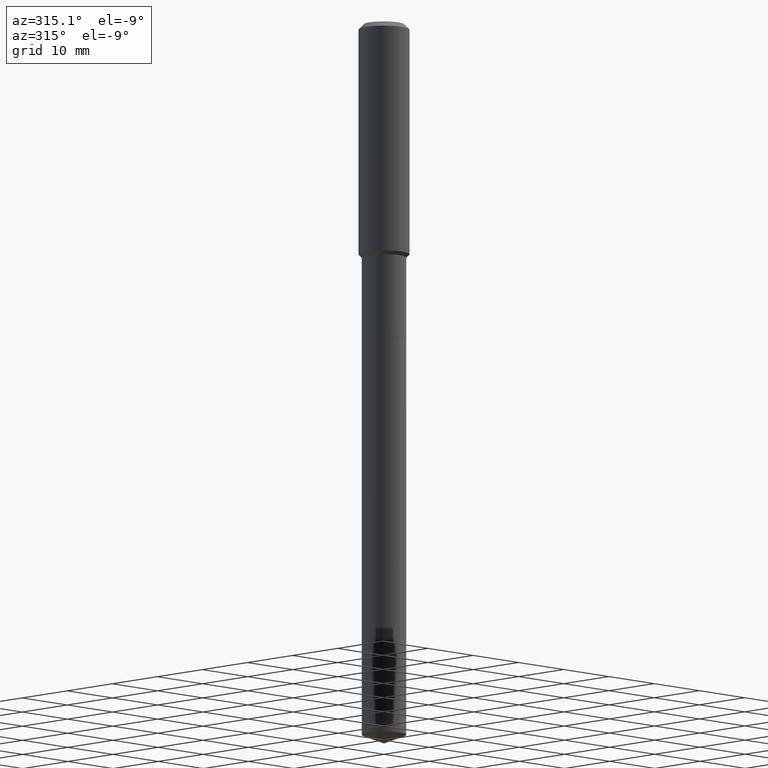
[diagram: clean part render]
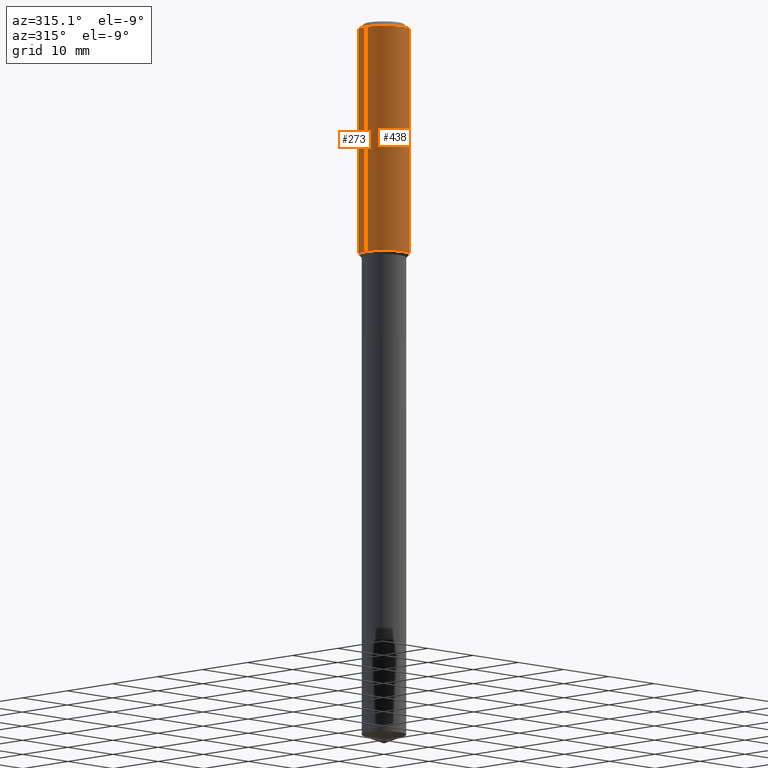
[diagram: same view with one multi-face feature highlighted, each face labeled with its STEP entity id]
A machine part, auxiliary view. The highlighted faces form ONE feature: a constant-radius fillet chain: 2 tangent blend faces with common blend radius 4.0005 mm. The faces share edges in the B-rep.
Their STEP definitions:
[1] entity #438 (Cylinder):
#7 = DIRECTION ( 'NONE',  ( -2.445468806185136877E-29, 3.491481338843145188E-15, 1.000000000000000000 ) ) ;
#20 = ORIENTED_EDGE ( 'NONE', *, *, #325, .T. ) ;
#31 = VERTEX_POINT ( 'NONE', #430 ) ;
#46 = CARTESIAN_POINT ( 'NONE',  ( 0.1575000000000000844, -1.099816621735587677E-15, 7.679978421878603638E-30 ) ) ;
#52 = LINE ( 'NONE', #237, #287 ) ;
#56 = ORIENTED_EDGE ( 'NONE', *, *, #465, .T. ) ;
#76 = CIRCLE ( 'NONE', #160, 0.1575000000000001676 ) ;
#78 = DIRECTION ( 'NONE',  ( -2.445468806185136597E-29, 3.491481338843145583E-15, 1.000000000000000000 ) ) ;
#89 = CARTESIAN_POINT ( 'NONE',  ( 0.000000000000000000, 0.000000000000000000, 0.000000000000000000 ) ) ;
#91 = CIRCLE ( 'NONE', #424, 0.1575000000000000011 ) ;
#95 = CARTESIAN_POINT ( 'NONE',  ( -0.1575000000000001676, -3.891520060551639155E-15, -1.435100000000000042 ) ) ;
#98 = CARTESIAN_POINT ( 'NONE',  ( 3.509492283756289196E-29, -5.010624869373797547E-15, -1.435100000000000042 ) ) ;
#100 = ORIENTED_EDGE ( 'NONE', *, *, #132, .F. ) ;
#120 = EDGE_LOOP ( 'NONE', ( #206, #56, #20, #100 ) ) ;
#132 = EDGE_CURVE ( 'NONE', #31, #447, #91, .T. ) ;
#160 = AXIS2_PLACEMENT_3D ( 'NONE', #98, #203, #427 ) ;
#194 = CARTESIAN_POINT ( 'NONE',  ( 7.703226739483228723E-31, -1.099816621735597661E-16, -0.03150000000000019451 ) ) ;
#200 = DIRECTION ( 'NONE',  ( 1.000000000000000000, -6.982962677686267499E-15, 4.876176775795936353E-29 ) ) ;
#203 = DIRECTION ( 'NONE',  ( -2.445468806185136597E-29, 3.491481338843145583E-15, 1.000000000000000000 ) ) ;
#206 = ORIENTED_EDGE ( 'NONE', *, *, #226, .F. ) ;
#226 = EDGE_CURVE ( 'NONE', #474, #31, #52, .T. ) ;
#237 = CARTESIAN_POINT ( 'NONE',  ( -0.1575000000000000844, 1.119104808822158392E-15, -7.747322767151481189E-30 ) ) ;
#239 = CYLINDRICAL_SURFACE ( 'NONE', #488, 0.1575000000000000844 ) ;
#269 = VERTEX_POINT ( 'NONE', #480 ) ;
#281 = CARTESIAN_POINT ( 'NONE',  ( 0.1575000000000000011, -1.209798283909146741E-15, -0.03150000000000019451 ) ) ;
#287 = VECTOR ( 'NONE', #348, 39.37007874015748143 ) ;
#325 = EDGE_CURVE ( 'NONE', #269, #447, #376, .T. ) ;
#348 = DIRECTION ( 'NONE',  ( -2.445468806185136877E-29, 3.491481338843145188E-15, 1.000000000000000000 ) ) ;
#376 = LINE ( 'NONE', #46, #477 ) ;
#412 = DIRECTION ( 'NONE',  ( 1.000000000000000000, -6.982962677686265922E-15, 0.000000000000000000 ) ) ;
#424 = AXIS2_PLACEMENT_3D ( 'NONE', #194, #78, #412 ) ;
#427 = DIRECTION ( 'NONE',  ( 1.000000000000000000, -6.982962677686267499E-15, 0.000000000000000000 ) ) ;
#430 = CARTESIAN_POINT ( 'NONE',  ( -0.1575000000000000011, -1.441198456951520308E-15, -0.03150000000000019451 ) ) ;
#438 = ADVANCED_FACE ( 'NONE', ( #473 ), #239, .T. ) ;
#447 = VERTEX_POINT ( 'NONE', #281 ) ;
#460 = DIRECTION ( 'NONE',  ( -2.445468806185136597E-29, 3.491481338843145583E-15, 1.000000000000000000 ) ) ;
#465 = EDGE_CURVE ( 'NONE', #474, #269, #76, .T. ) ;
#473 = FACE_OUTER_BOUND ( 'NONE', #120, .T. ) ;
#474 = VERTEX_POINT ( 'NONE', #95 ) ;
#477 = VECTOR ( 'NONE', #7, 39.37007874015748143 ) ;
#480 = CARTESIAN_POINT ( 'NONE',  ( 0.1575000000000001676, -6.110441491109387394E-15, -1.435100000000000042 ) ) ;
#488 = AXIS2_PLACEMENT_3D ( 'NONE', #89, #460, #200 ) ;
[2] entity #273 (Cylinder):
#7 = DIRECTION ( 'NONE',  ( -2.445468806185136877E-29, 3.491481338843145188E-15, 1.000000000000000000 ) ) ;
#31 = VERTEX_POINT ( 'NONE', #430 ) ;
#39 = CARTESIAN_POINT ( 'NONE',  ( 7.703226739483228723E-31, -1.099816621735597661E-16, -0.03150000000000019451 ) ) ;
#41 = AXIS2_PLACEMENT_3D ( 'NONE', #342, #263, #373 ) ;
#46 = CARTESIAN_POINT ( 'NONE',  ( 0.1575000000000000844, -1.099816621735587677E-15, 7.679978421878603638E-30 ) ) ;
#52 = LINE ( 'NONE', #237, #287 ) ;
#95 = CARTESIAN_POINT ( 'NONE',  ( -0.1575000000000001676, -3.891520060551639155E-15, -1.435100000000000042 ) ) ;
#104 = EDGE_CURVE ( 'NONE', #269, #474, #300, .T. ) ;
#146 = DIRECTION ( 'NONE',  ( -2.445468806185136597E-29, 3.491481338843145583E-15, 1.000000000000000000 ) ) ;
#169 = ORIENTED_EDGE ( 'NONE', *, *, #104, .T. ) ;
#184 = AXIS2_PLACEMENT_3D ( 'NONE', #39, #455, #338 ) ;
#191 = EDGE_CURVE ( 'NONE', #447, #31, #425, .T. ) ;
#221 = FACE_OUTER_BOUND ( 'NONE', #423, .T. ) ;
#226 = EDGE_CURVE ( 'NONE', #474, #31, #52, .T. ) ;
#237 = CARTESIAN_POINT ( 'NONE',  ( -0.1575000000000000844, 1.119104808822158392E-15, -7.747322767151481189E-30 ) ) ;
#238 = ORIENTED_EDGE ( 'NONE', *, *, #191, .F. ) ;
#263 = DIRECTION ( 'NONE',  ( -2.445468806185136597E-29, 3.491481338843145583E-15, 1.000000000000000000 ) ) ;
#269 = VERTEX_POINT ( 'NONE', #480 ) ;
#273 = ADVANCED_FACE ( 'NONE', ( #221 ), #446, .T. ) ;
#280 = ORIENTED_EDGE ( 'NONE', *, *, #325, .F. ) ;
#281 = CARTESIAN_POINT ( 'NONE',  ( 0.1575000000000000011, -1.209798283909146741E-15, -0.03150000000000019451 ) ) ;
#287 = VECTOR ( 'NONE', #348, 39.37007874015748143 ) ;
#300 = CIRCLE ( 'NONE', #41, 0.1575000000000001676 ) ;
#325 = EDGE_CURVE ( 'NONE', #269, #447, #376, .T. ) ;
#338 = DIRECTION ( 'NONE',  ( 1.000000000000000000, -6.982962677686265922E-15, 0.000000000000000000 ) ) ;
#342 = CARTESIAN_POINT ( 'NONE',  ( 3.509492283756289196E-29, -5.010624869373797547E-15, -1.435100000000000042 ) ) ;
#348 = DIRECTION ( 'NONE',  ( -2.445468806185136877E-29, 3.491481338843145188E-15, 1.000000000000000000 ) ) ;
#366 = CARTESIAN_POINT ( 'NONE',  ( 0.000000000000000000, 0.000000000000000000, 0.000000000000000000 ) ) ;
#373 = DIRECTION ( 'NONE',  ( 1.000000000000000000, -6.982962677686267499E-15, 0.000000000000000000 ) ) ;
#376 = LINE ( 'NONE', #46, #477 ) ;
#397 = DIRECTION ( 'NONE',  ( 1.000000000000000000, -6.982962677686267499E-15, 4.876176775795936353E-29 ) ) ;
#415 = AXIS2_PLACEMENT_3D ( 'NONE', #366, #146, #397 ) ;
#423 = EDGE_LOOP ( 'NONE', ( #169, #471, #238, #280 ) ) ;
#425 = CIRCLE ( 'NONE', #184, 0.1575000000000000011 ) ;
#430 = CARTESIAN_POINT ( 'NONE',  ( -0.1575000000000000011, -1.441198456951520308E-15, -0.03150000000000019451 ) ) ;
#446 = CYLINDRICAL_SURFACE ( 'NONE', #415, 0.1575000000000000844 ) ;
#447 = VERTEX_POINT ( 'NONE', #281 ) ;
#455 = DIRECTION ( 'NONE',  ( -2.445468806185136597E-29, 3.491481338843145583E-15, 1.000000000000000000 ) ) ;
#471 = ORIENTED_EDGE ( 'NONE', *, *, #226, .T. ) ;
#474 = VERTEX_POINT ( 'NONE', #95 ) ;
#477 = VECTOR ( 'NONE', #7, 39.37007874015748143 ) ;
#480 = CARTESIAN_POINT ( 'NONE',  ( 0.1575000000000001676, -6.110441491109387394E-15, -1.435100000000000042 ) ) ;